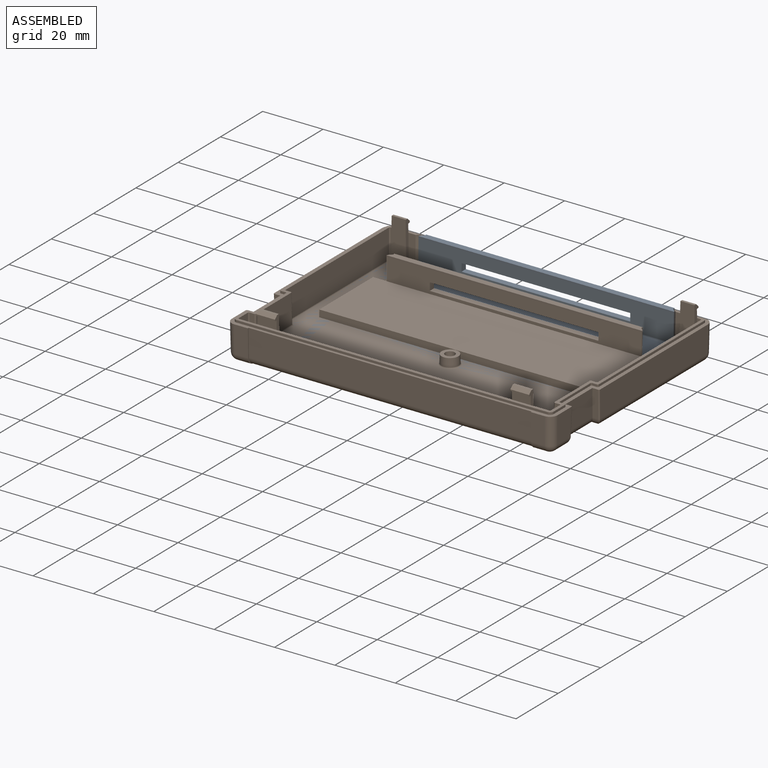
[diagram: assembled view]
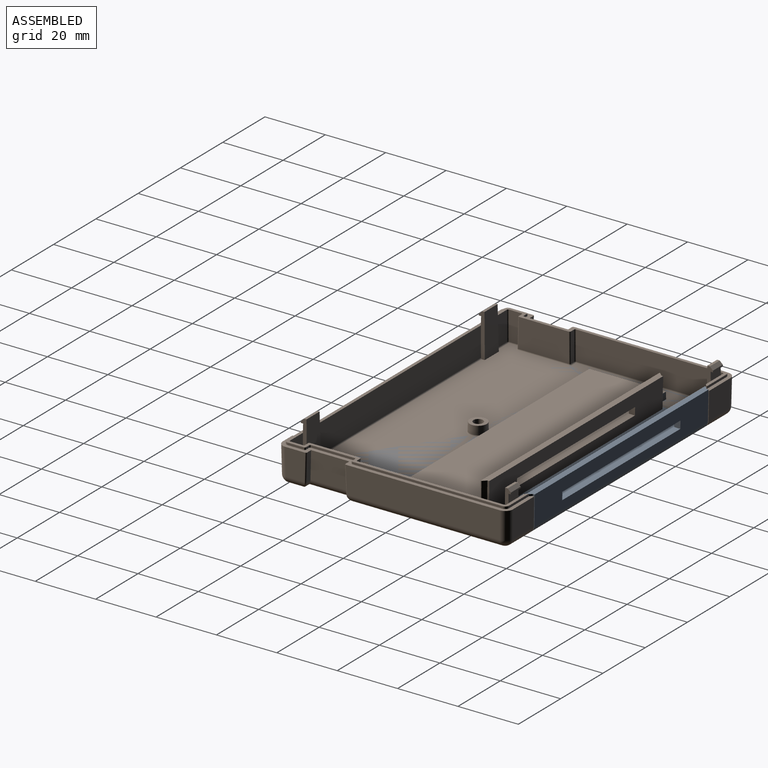
[diagram: assembled view, second angle]
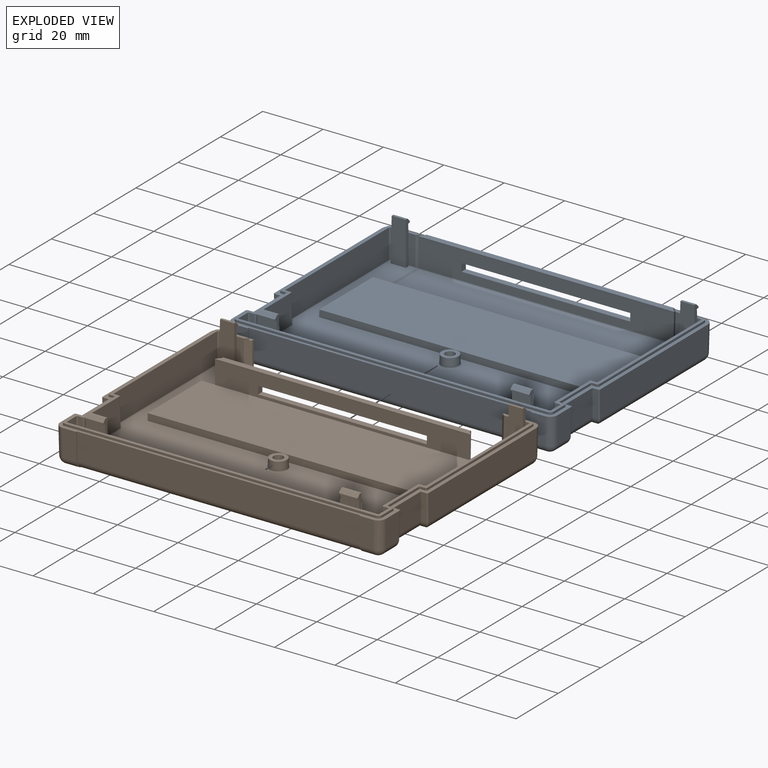
[diagram: exploded view]
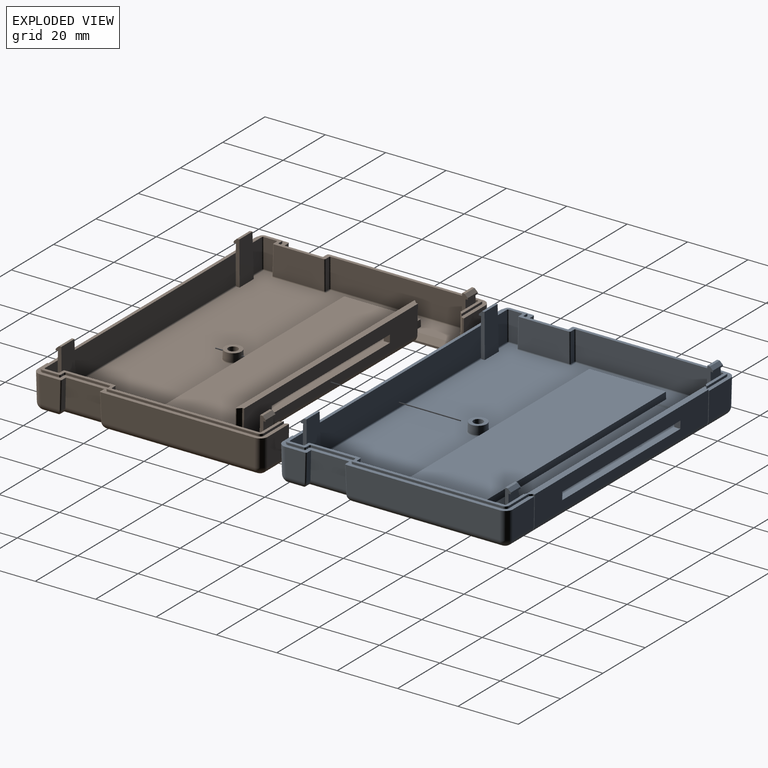
[diagram: exploded view, second angle]
FCSTD DOCUMENT  (FreeCAD 1.0R39109 (Git))
Label: ChameleonCase
License: CERN Open Hardware Licence weakly-reciprocal
LicenseURL: https://cern-ohl.web.cern.ch/
objects: Sketcher::SketchObject×19, PartDesign::Pad×14, PartDesign::Pocket×13, PartDesign::SubShapeBinder×12, PartDesign::Fillet×8, PartDesign::Plane×6, PartDesign::Draft×6, PartDesign::Body×6, App::Part×5, PartDesign::LinearPattern×4, Part::Offset2D×3, PartDesign::Hole×3, App::Link×3, App::DocumentObjectGroup×2, Spreadsheet::Sheet×1, PartDesign::SubtractivePipe×1, PartDesign::AdditivePipe×1, Part::MultiFuse×1
note: 212 computed .brp shape members not serialized (recipe doc carries the construction recipe); baked Part::Feature solids carry a one-line shape summary decoded from their .brp

FEATURE [Spreadsheet::Sheet] Spreadsheet  label="Parameters"
  cells = A1='Primary Dimensions; A2='Overall Width; B2(width)==4.25 "; A3='Overall Depth; B3(depth)==3 "; A4='Overall Height; B4(height)==0.9 "; A5='Draft Angle; B5(draftAngle)==1 deg; A6='Outer Fillet; B6(outerFillet)==100 thou; A7='Inner Fillet; B7(innerFillet)==15 thou; A8='Shell Thickness; B8(shellThickness)==90 thou; A9='Shell Mating Depth; B9(shellMatingDepth)==30 thou; A10='Shell Mating Clearance; B10(shellClearance)==5 thou; A12='Sticker Cutout; A13='Sticker Width; B13(stickerWidth)==3.69 "; A14='Sticker Height; B14(stickerHeight)==2 "; A15='Sticker Depth; B15(stickerDepth)==15 thou; A17='Screw Pattern; A18='Board Post Y Offset from Connector Edge; B18(boardPostYOffset)==2.08 "; A19='Board Post Height; B19(boardPostHeight)==0.525 "; A20='Board Post Outer Diameter; B20(boardPostOD)==0.22 "; A21='Board Post Inner Diameter; B21(boardPostID)==3 mm; C21='M2 heat-set insert; A22='Board Post X Spacing; B22(boardPostXSpacing)==1.785 "; A23='Board Post Y Spacing; B23(boardPostYSpacing)==1.4 "; A24='Shell Post Height; B24(shellPostHeight)==0.535 " + 1.6 mm; A25='Shell Post Outer Diameter; B25(shellPostOD)==0.22 "; A26='Shell Post Inner Diameter; B26(shellPostID)==3 mm; C26='M2 heat-set insert; A27='Shell Post Y Offset From Board Posts; B27(shellPostYOffset)==0.95 "; A29='Light Pipe; A30='Light Pipe Y Offset from Board Post; B30(lightPipeOffsetX)==10.9 mm; A31='Light Pipe X Offset from Board Post; B31(lightPipeOffsetY)==6.6 mm; A32='Light Pipe Height; B32(lightPipeHeight)==B19 - 2 mm; A34='Shutter; A35='Shutter Origin in Y; B35(shutterOriginY)==tan(draftAngle) * (height / 2 - outerFillet) + outerFillet; A36='Shutter Pocket Depth; B36(shutterPocketDepth)==1.6 "; A37='Shutter Movement Depth; B37(shutterMovementDepth)==0.6 in; A38='Shutter Width (Exterior); B38(shutterWidth)==3.25 "; A39='Shutter Square Bottom Height; B39(shutterSquareBottomHeight)==0.025 in; A40='Shutter Square Top Height; B40(shutterSquareTopHeight)==0.01 in; A41='Shutter Clearance; B41(shutterClearance)==0.01 in; A43='Clips; A44='Rear Clip Width; B44(clipRearWidth)==0.19 in; A45='Rear Clip Spacing; B45(clipRearSpacing)==3.575 in; A46='Front Clip Width; B46(clipFrontWidth)==0.25 in; A47='Front Clip Spacing; B47(clipFrontSpacing)==3.065 in; A48='Clip Height (shell top to tang bottom); B48(clipHeight)==0.14 in; A49='Clip Thickness; B49(clipThickness)==0.05 in; A50='Clip Tang Depth; B50(clipTangDepth)==0.03 in; A51='Clip Clearance; B51(clipClearance)==0.01 in; A52='Clip Nose Height; B52(clipNoseHeight)==0.02 in
FEATURE [Sketcher::SketchObject] Sketch  label="P0_CaseOutlineSketch"
  ArcFitTolerance = 0
  AttachmentSupport = -> [XY_Plane]
  FullyConstrained = true
  MakeInternals = false
  MapMode = 5
  expr: Constraints[25] = <<Parameters>>.depth
  expr: Constraints[30] = <<Parameters>>.width
  sketch-geometry (12):
    g0: LineSegment StartX=-53.975 StartY=0 StartZ=0 EndX=-53.975 EndY=9.525 EndZ=0
    g1: LineSegment StartX=-53.975 StartY=9.525 StartZ=0 EndX=-51.689 EndY=9.525 EndZ=0
    g2: LineSegment StartX=-51.689 StartY=9.525 StartZ=0 EndX=-51.689 EndY=22.225 EndZ=0
    g3: LineSegment StartX=-51.689 StartY=22.225 StartZ=0 EndX=-53.975 EndY=22.225 EndZ=0
    g4: LineSegment StartX=-53.975 StartY=22.225 StartZ=0 EndX=-53.975 EndY=76.2 EndZ=0
    g5: LineSegment StartX=53.975 StartY=0 StartZ=0 EndX=53.975 EndY=9.525 EndZ=0
    g6: LineSegment StartX=53.975 StartY=9.525 StartZ=0 EndX=51.689 EndY=9.525 EndZ=0
    g7: LineSegment StartX=51.689 StartY=9.525 StartZ=0 EndX=51.689 EndY=22.225 EndZ=0
    g8: LineSegment StartX=51.689 StartY=22.225 StartZ=0 EndX=53.975 EndY=22.225 EndZ=0
    g9: LineSegment StartX=53.975 StartY=22.225 StartZ=0 EndX=53.975 EndY=76.2 EndZ=0
    g10: LineSegment StartX=-53.975 StartY=0 StartZ=0 EndX=53.975 EndY=0 EndZ=0
    g11: LineSegment StartX=-53.975 StartY=76.2 StartZ=0 EndX=53.975 EndY=76.2 EndZ=0
  constraints (35):
    c: Vertical(g0)
    c: Coincident(g0,g1)
    c: Horizontal(g1)
    c: Coincident(g1,g2)
    c: Vertical(g2)
    c: Coincident(g2,g3)
    c: Horizontal(g3)
    c: Coincident(g3,g4)
    c: Vertical(g4)
    c: Vertical(g0,g3)
    c: Vertical(g5)
    c: Coincident(g5,g6)
    c: Horizontal(g6)
    c: Coincident(g6,g7)
    c: Vertical(g7)
    c: Coincident(g7,g8)
    c: Horizontal(g8)
    c: Coincident(g8,g9)
    c: Vertical(g9)
    c: Vertical(g5,g8)
    c: Equal(g1,g6)
    c: Equal(g7,g2)
    c: Equal(g0,g5)
    c: Horizontal(g10)
    c: Symmetric(g11,g11,g-2)
    c: DistanceY(g10,g11) = 76.2
    c: PointOnObject(g10,g-1)
    c: DistanceY(g5,g8) = 12.7
    c: DistanceX(g6,g6) = 2.286
    c: DistanceY(g10,g5) = 9.525
    c: DistanceX(g4,g9) = 107.95
    c: Coincident(g0,g10)
    c: Coincident(g10,g5)
    c: Coincident(g4,g11)
    c: Coincident(g9,g11)
FEATURE [PartDesign::SubShapeBinder] Binder  label="P01_CaseOutlineBinder"
  BindCopyOnChange = 0
  BindMode = 0
  ClaimChildren = false
  Context = -> Part [Body.Binder.]
  Fuse = false
  MakeFace = true
  OffsetFill = false
  OffsetIntersection = false
  OffsetJoinType = 0
  OffsetOpenResult = false
  PartialLoad = false
  Relative = true
  Support = -> [Sketch]
  _Version = 2
FEATURE [PartDesign::Pad] Pad  label="P01_CasePad"
  Direction = (0,0,1)
  Length = 11.43
  Length2 = 10
  Profile = -> Binder
  Suppressed = false
  Type = 0
  expr: Length = <<Parameters>>.height / 2
FEATURE [PartDesign::Plane] DatumPlane  label="P01_TopPlane"
  AttachmentOffset = pos=(0,0,11.43) rot=(0,0,1;0rad)
  AttachmentSupport = -> [XY_Plane001]
  Length = 128.856
  MapMode = 5
  Placement = pos=(0,0,11.43) rot=(0,0,1;0rad)
  ResizeMode = 0
  Width = 122.126
  expr: .AttachmentOffset.Base.z = <<Parameters>>.height / 2
FEATURE [Sketcher::SketchObject] Sketch001  label="P01_TopInsetSketch"
  ArcFitTolerance = 0
  AttachmentSupport = -> [DatumPlane]
  FullyConstrained = true
  MakeInternals = false
  MapMode = 5
  Placement = pos=(0,0,11.43) rot=(0,0,1;0rad)
  expr: Constraints[13] = <<Parameters>>.stickerWidth
  expr: Constraints[14] = <<Parameters>>.stickerHeight
  sketch-geometry (9):
    g0: LineSegment StartX=-46.863 StartY=0 StartZ=0 EndX=46.863 EndY=0 EndZ=0
    g1: LineSegment StartX=46.863 StartY=0 StartZ=0 EndX=46.863 EndY=46.99 EndZ=0
    g2: LineSegment StartX=43.053 StartY=50.8 StartZ=0 EndX=-43.053 EndY=50.8 EndZ=0
    g3: LineSegment StartX=-46.863 StartY=46.99 StartZ=0 EndX=-46.863 EndY=0 EndZ=0
    g4: ArcOfCircle CenterX=43.053 CenterY=46.99 CenterZ=0 NormalX=0 NormalY=0 NormalZ=1 AngleXU=0 Radius=3.81 StartAngle=8.98429e-11 EndAngle=1.5708
    g5: ArcOfCircle CenterX=-43.053 CenterY=46.99 CenterZ=0 NormalX=0 NormalY=0 NormalZ=1 AngleXU=0 Radius=3.81 StartAngle=1.5708 EndAngle=3.14159
    g6: LineSegment StartX=-12.7 StartY=55.626 StartZ=0 EndX=12.7 EndY=55.626 EndZ=0
    g7: LineSegment StartX=12.7 StartY=55.626 StartZ=0 EndX=0 EndY=68.326 EndZ=0
    g8: LineSegment StartX=0 StartY=68.326 StartZ=0 EndX=-12.7 EndY=55.626 EndZ=0
  constraints (23):
    c: Coincident(g0,g1)
    c: Vertical(g1)
    c: Horizontal(g2)
    c: Coincident(g3,g0)
    c: Vertical(g3)
    c: Symmetric(g0,g0,g-1)
    c: Horizontal(g0)
    c: Tangent(g1,g4) = -1.5708
    c: Tangent(g2,g4) = -1.5708
    c: Tangent(g2,g5) = -1.5708
    c: Tangent(g3,g5) = -1.5708
    c: Equal(g4,g5)
    c: Radius(g5) = 3.81
    c: DistanceX(g0,g0) = 93.726
    c: DistanceY(g0,g2) = 50.8
    c: Coincident(g6,g7)
    c: PointOnObject(g7,g-2)
    c: Coincident(g7,g8)
    c: Coincident(g8,g6)
    c: Symmetric(g6,g6,g-2)
    c: DistanceX(g6,g6) = 25.4
    c: DistanceY(g6,g7) = 12.7
    c: DistanceY(g2,g6) = 4.826
FEATURE [Sketcher::SketchObject] Sketch002  label="P01_FrontInsetSketch"
  ArcFitTolerance = 0
  AttachmentSupport = -> [XZ_Plane001]
  ExternalGeometry = -> [DatumPlane]
  FullyConstrained = true
  MakeInternals = false
  MapMode = 5
  Placement = pos=(0,0,0) rot=(1,0,0;1.5708rad)
  expr: Constraints[7] = <<Parameters>>.stickerWidth
  sketch-geometry (4):
    g0: LineSegment StartX=-46.863 StartY=-11.43 StartZ=0 EndX=46.863 EndY=-11.43 EndZ=0
    g1: LineSegment StartX=46.863 StartY=-11.43 StartZ=0 EndX=46.863 EndY=11.43 EndZ=0
    g2: LineSegment StartX=46.863 StartY=11.43 StartZ=0 EndX=-46.863 EndY=11.43 EndZ=0
    g3: LineSegment StartX=-46.863 StartY=11.43 StartZ=0 EndX=-46.863 EndY=-11.43 EndZ=0
  constraints (10):
    c: Coincident(g0,g1)
    c: Coincident(g1,g2)
    c: Coincident(g2,g3)
    c: Coincident(g3,g0)
    c: Horizontal(g2)
    c: Vertical(g3)
    c: PointOnObject(g1,g-3)
    c: DistanceX(g0,g0) = 93.726
    c: Symmetric(g0,g0,g-2)
    c: Symmetric(g0,g1,g-1)
FEATURE [PartDesign::Plane] DatumPlane001  label="P01_TopInsidePlane"
  AttachmentOffset = pos=(0,0,9.144) rot=(0,0,1;0rad)
  AttachmentSupport = -> [XY_Plane001]
  Length = 128.856
  MapMode = 5
  Placement = pos=(0,0,9.144) rot=(0,0,1;0rad)
  ResizeMode = 0
  Width = 122.126
  expr: .AttachmentOffset.Base.z = <<Parameters>>.height / 2 - <<Parameters>>.shellThickness
FEATURE [Sketcher::SketchObject] Sketch003  label="P01_BoardPostSketch"
  ArcFitTolerance = 0
  AttachmentOffset = pos=(0,0,-13.335) rot=(0,0,1;0rad)
  AttachmentSupport = -> [DatumPlane001]
  FullyConstrained = true
  MakeInternals = false
  MapMode = 5
  Placement = pos=(0,0,-4.191) rot=(0,0,1;0rad)
  expr: .AttachmentOffset.Base.z = <<Parameters>>.boardPostHeight * -1
  expr: Constraints[3] = Spreadsheet.boardPostOD
  expr: Constraints[7] = <<Parameters>>.boardPostXSpacing
  expr: Constraints[8] = <<Parameters>>.boardPostYSpacing
  expr: Constraints[9] = <<Parameters>>.boardPostYOffset
  sketch-geometry (4):
    g0: Circle CenterX=-22.6695 CenterY=52.832 CenterZ=0 NormalX=0 NormalY=0 NormalZ=1 AngleXU=0 Radius=2.794
    g1: Circle CenterX=22.6695 CenterY=52.832 CenterZ=0 NormalX=0 NormalY=0 NormalZ=1 AngleXU=0 Radius=2.794
    g2: Circle CenterX=22.6695 CenterY=17.272 CenterZ=0 NormalX=0 NormalY=0 NormalZ=1 AngleXU=0 Radius=2.794
    g3: Circle CenterX=-22.6695 CenterY=17.272 CenterZ=0 NormalX=0 NormalY=0 NormalZ=1 AngleXU=0 Radius=2.794
  constraints (11):
    c: Equal(g0,g1)
    c: Equal(g0,g3)
    c: Equal(g0,g2)
    c: Diameter(g0) = 5.588
    c: Horizontal(g0,g1)
    c: Vertical(g3,g0)
    c: Vertical(g1,g2)
    c: DistanceX(g0,g1) = 45.339
    c: DistanceY(g2,g1) = 35.56
    c: DistanceY(g-1,g0) = 52.832
    c: Symmetric(g3,g2,g-2)
FEATURE [Sketcher::SketchObject] Sketch004  label="P01_ShellPostSketch"
  ArcFitTolerance = 0
  AttachmentOffset = pos=(0,0,-15.189) rot=(0,0,1;0rad)
  AttachmentSupport = -> [DatumPlane001]
  FullyConstrained = true
  MakeInternals = false
  MapMode = 5
  Placement = pos=(0,0,-6.045) rot=(0,0,1;0rad)
  expr: .AttachmentOffset.Base.z = <<Parameters>>.shellPostHeight * -1
  expr: Constraints[1] = Spreadsheet.shellPostOD
  expr: Constraints[2] = <<Parameters>>.boardPostYOffset - <<Parameters>>.shellPostYOffset
  sketch-geometry (1):
    g0: Circle CenterX=0 CenterY=28.702 CenterZ=0 NormalX=0 NormalY=0 NormalZ=1 AngleXU=0 Radius=2.794
  constraints (3):
    c: PointOnObject(g0,g-2)
    c: Diameter(g0) = 5.588
    c: DistanceY(g-1,g0) = 28.702
FEATURE [Part::Offset2D] Offset2D001  label="P0_CaseInsideWire"
  Fill = false
  Intersection = false
  Join = 2
  Mode = 1
  SelfIntersection = false
  Source = -> Sketch
  Value = -2.286
  expr: Value = <<Parameters>>.shellThickness * -1
FEATURE [PartDesign::SubShapeBinder] Binder002  label="P01_CaseInsideWireBinder"
  BindCopyOnChange = 0
  BindMode = 0
  ClaimChildren = false
  Context = -> Part [Body.Binder002.]
  Fuse = false
  MakeFace = true
  OffsetFill = false
  OffsetIntersection = false
  OffsetJoinType = 0
  OffsetOpenResult = false
  PartialLoad = false
  Placement = pos=(0,0,0.762) rot=(0,0,1;0rad)
  Relative = true
  Support = -> [Group[Offset2D001.]]
  _Version = 2
  expr: .Placement.Base.z = <<Parameters>>.shellMatingDepth
FEATURE [Part::Offset2D] Offset2D  label="P0_TopCaseLipWire"
  Fill = false
  Intersection = false
  Join = 2
  Mode = 1
  SelfIntersection = false
  Source = -> Sketch
  Value = -1.143
  expr: Value = <<Parameters>>.shellThickness / -2
FEATURE [PartDesign::SubShapeBinder] Binder004  label="P01_LipWireBinder"
  BindCopyOnChange = 0
  BindMode = 0
  ClaimChildren = false
  Context = -> Part [Body.Binder004.]
  Fuse = false
  MakeFace = true
  OffsetFill = false
  OffsetIntersection = false
  OffsetJoinType = 0
  OffsetOpenResult = false
  PartialLoad = false
  Relative = true
  Support = -> [Group[Offset2D.]]
  _Version = 2
FEATURE [PartDesign::Pocket] Pocket005  label="P01_LipPocket"
  BaseFeature = -> Pad
  Direction = (0,0,-1)
  Length = 0.762
  Length2 = 5
  Profile = -> Binder004
  Reversed = true
  Suppressed = false
  Type = 0
  expr: Length = <<Parameters>>.shellMatingDepth
FEATURE [PartDesign::Pocket] Pocket002  label="P01_CaseInsidePocket"
  BaseFeature = -> Pocket005
  Direction = (0,0,-1)
  Length = 8.382
  Length2 = 5
  Profile = -> Binder002
  Reversed = true
  Suppressed = false
  TaperAngle = -1
  Type = 0
  expr: Length = <<Parameters>>.height / 2 - <<Parameters>>.shellThickness - <<Parameters>>.shellMatingDepth
  expr: TaperAngle = <<Parameters>>.draftAngle * -1
FEATURE [PartDesign::Pocket] Pocket  label="P01_TopInset"
  BaseFeature = -> Pocket002
  Direction = (0,0,-1)
  Length = 0.381
  Length2 = 5
  Profile = -> Sketch001
  ReferenceAxis = -> Sketch001 [N_Axis]
  Suppressed = false
  Type = 0
  expr: Length = <<Parameters>>.stickerDepth
FEATURE [PartDesign::Pocket] Pocket001  label="P01_FrontInset"
  BaseFeature = -> Pocket
  Direction = (0,1,-2e-16)
  Length = 0.381
  Length2 = 5
  Profile = -> Sketch002
  ReferenceAxis = -> Sketch002 [N_Axis]
  Refine = true
  Suppressed = false
  Type = 0
  expr: Length = <<Parameters>>.stickerDepth
FEATURE [PartDesign::SubShapeBinder] Binder005  label="P021_CaseOutlineBinder"
  BindCopyOnChange = 0
  BindMode = 0
  ClaimChildren = false
  Context = -> Part [Part001.Body001.Binder005.]
  Fuse = false
  MakeFace = true
  OffsetFill = false
  OffsetIntersection = false
  OffsetJoinType = 0
  OffsetOpenResult = false
  PartialLoad = false
  Relative = true
  Support = -> [Group[Sketch.]]
  _Version = 2
FEATURE [PartDesign::Pad] Pad004  label="P021_CasePad"
  Direction = (0,0,1)
  Length = 11.43
  Length2 = 10
  Profile = -> Binder005
  Reversed = true
  Suppressed = false
  Type = 0
  expr: Length = <<Parameters>>.height / 2
FEATURE [Part::Offset2D] Offset2D002  label="P0_BottomCaseLipWire"
  Fill = false
  Intersection = false
  Join = 2
  Mode = 1
  SelfIntersection = false
  Source = -> Sketch
  Value = -1.27
  expr: Value = (<<Parameters>>.shellThickness / 2 + <<Parameters>>.shellClearance) * -1
FEATURE [App::DocumentObjectGroup] Group  label="P0_MasterSketch"
  Group = -> [Sketch,Offset2D001,Offset2D,Offset2D002]
FEATURE [PartDesign::SubShapeBinder] Binder006  label="P021_LipWireBinder"
  BindCopyOnChange = 0
  BindMode = 0
  ClaimChildren = false
  Context = -> Part [Part001.Body001.Binder006.]
  Fuse = false
  MakeFace = true
  OffsetFill = false
  OffsetIntersection = false
  OffsetJoinType = 0
  OffsetOpenResult = false
  PartialLoad = false
  Relative = true
  Support = -> [Group[Offset2D002.]]
  _Version = 2
FEATURE [PartDesign::Pad] Pad005  label="P021_LipPad"
  BaseFeature = -> Pad004
  Direction = (0,0,1)
  Length = 0.762
  Length2 = 10
  Profile = -> Binder006
  Suppressed = false
  Type = 0
  expr: Length = <<Parameters>>.shellMatingDepth
FEATURE [PartDesign::SubShapeBinder] Binder007  label="P021_CaseInsideWireBinder"
  BindCopyOnChange = 0
  BindMode = 0
  ClaimChildren = false
  Context = -> Part [Part001.Body001.Binder007.]
  Fuse = false
  MakeFace = true
  OffsetFill = false
  OffsetIntersection = false
  OffsetJoinType = 0
  OffsetOpenResult = false
  PartialLoad = false
  Placement = pos=(0,0,0.762) rot=(0,0,1;0rad)
  Relative = true
  Support = -> [Group[Offset2D001.]]
  _Version = 2
  expr: .Placement.Base.z = <<Parameters>>.shellMatingDepth
FEATURE [PartDesign::Pocket] Pocket006  label="P021_CaseInsidePocket"
  BaseFeature = -> Pad005
  Direction = (0,0,-1)
  Length = 9.906
  Length2 = 5
  Profile = -> Binder007
  Suppressed = false
  TaperAngle = -1
  Type = 0
  expr: Length = <<Parameters>>.height / 2 - <<Parameters>>.shellThickness + <<Parameters>>.shellMatingDepth
  expr: TaperAngle = <<Parameters>>.draftAngle * -1
FEATURE [PartDesign::Plane] DatumPlane002  label="P021_BottomPlane"
  AttachmentOffset = pos=(0,0,-11.43) rot=(0,0,1;0rad)
  AttachmentSupport = -> [XY_Plane003]
  Length = 128.856
  MapMode = 5
  Placement = pos=(0,0,-11.43) rot=(0,0,1;0rad)
  ResizeMode = 0
  Width = 122.126
  expr: .AttachmentOffset.Base.z = <<Parameters>>.height / 2 * -1
FEATURE [PartDesign::Plane] DatumPlane004  label="P021_BackPlane"
  AttachmentOffset = pos=(0,0,-76.2) rot=(0,0,1;0rad)
  AttachmentSupport = -> [XZ_Plane003]
  Length = 122.649
  MapMode = 5
  Placement = pos=(0,76.2,-1.69e-14) rot=(1,0,0;1.5708rad)
  ResizeMode = 0
  Width = 64.7394
  expr: .AttachmentOffset.Base.z = <<Parameters>>.depth * -1
FEATURE [Sketcher::SketchObject] Sketch007  label="P021_ShutterBaseProfileSketch"
  ArcFitTolerance = 0
  AttachmentOffset = pos=(0,0,2.69518) rot=(0,0,1;0rad)
  AttachmentSupport = -> [DatumPlane004]
  ExternalGeometry = -> [DatumPlane002]
  FullyConstrained = true
  MakeInternals = false
  MapMode = 5
  Placement = pos=(0,73.5048,-1.63e-14) rot=(1,0,0;1.5708rad)
  expr: .AttachmentOffset.Base.z = <<Parameters>>.shutterOriginY
  expr: Constraints[14] = <<Parameters>>.shellThickness + <<Parameters>>.innerFillet
  expr: Constraints[15] = <<Parameters>>.shutterWidth
  expr: Constraints[16] = <<Parameters>>.shutterSquareBottomHeight
  expr: Constraints[17] = 90 ° + <<Parameters>>.draftAngle
  sketch-geometry (7):
    g0: LineSegment StartX=-43.3181 StartY=-8.763 StartZ=0 EndX=-41.2861 EndY=-10.795 EndZ=0
    g1: LineSegment [constr] StartX=-41.2861 StartY=-10.795 StartZ=0 EndX=41.2861 EndY=-10.795 EndZ=0
    g2: LineSegment StartX=41.2861 StartY=-10.795 StartZ=0 EndX=43.3181 EndY=-8.763 EndZ=0
    g3: LineSegment StartX=43.3181 StartY=-8.763 StartZ=0 EndX=-43.3181 EndY=-8.763 EndZ=0
    g4: LineSegment StartX=-41.2861 StartY=-10.795 StartZ=0 EndX=-41.275 EndY=-11.43 EndZ=0
    g5: LineSegment StartX=-41.275 StartY=-11.43 StartZ=0 EndX=41.275 EndY=-11.43 EndZ=0
    g6: LineSegment StartX=41.275 StartY=-11.43 StartZ=0 EndX=41.2861 EndY=-10.795 EndZ=0
  constraints (19):
    c: Coincident(g0,g1)
    c: Coincident(g1,g2)
    c: Coincident(g2,g3)
    c: Coincident(g3,g0)
    c: Horizontal(g3)
    c: Angle(g2,g1) = 2.35619
    c: Equal(g2,g0)
    c: Symmetric(g0,g1,g-2)
    c: Coincident(g0,g4)
    c: Coincident(g4,g5)
    c: Horizontal(g5)
    c: Coincident(g5,g6)
    c: Coincident(g6,g1)
    c: PointOnObject(g5,g-3)
    c: DistanceY(g4,g0) = 2.667
    c: DistanceX(g5,g5) = 82.55
    c: DistanceY(g4,g4) = 0.635
    c: Angle(g6,g5) = 1.58825
    c: Equal(g4,g6)
FEATURE [Sketcher::SketchObject] Sketch008  label="P021_FrontInsetSketch"
  ArcFitTolerance = 0
  AttachmentSupport = -> [XZ_Plane003]
  ExternalGeometry = -> [DatumPlane002]
  FullyConstrained = true
  MakeInternals = false
  MapMode = 5
  Placement = pos=(0,0,0) rot=(1,0,0;1.5708rad)
  expr: Constraints[9] = <<Parameters>>.stickerWidth
  sketch-geometry (4):
    g0: LineSegment StartX=-46.863 StartY=0 StartZ=0 EndX=46.863 EndY=0 EndZ=0
    g1: LineSegment StartX=46.863 StartY=0 StartZ=0 EndX=46.863 EndY=-11.43 EndZ=0
    g2: LineSegment StartX=46.863 StartY=-11.43 StartZ=0 EndX=-46.863 EndY=-11.43 EndZ=0
    g3: LineSegment StartX=-46.863 StartY=-11.43 StartZ=0 EndX=-46.863 EndY=0 EndZ=0
  constraints (11):
    c: Coincident(g0,g1)
    c: Coincident(g1,g2)
    c: Coincident(g2,g3)
    c: Coincident(g3,g0)
    c: Horizontal(g0)
    c: Horizontal(g2)
    c: Vertical(g1)
    c: Vertical(g3)
    c: Symmetric(g0,g0,g-1)
    c: DistanceX(g2,g2) = 93.726
    c: PointOnObject(g1,g-3)
FEATURE [PartDesign::Pocket] Pocket007  label="P021_FrontInset"
  BaseFeature = -> Pocket006
  Direction = (0,1,-2e-16)
  Length = 0.381
  Length2 = 5
  Profile = -> Sketch008
  ReferenceAxis = -> Sketch008 [N_Axis]
  Suppressed = false
  Type = 0
  expr: Length = <<Parameters>>.stickerDepth
FEATURE [Sketcher::SketchObject] Sketch009  label="P021_ShellPostSketch"
  ArcFitTolerance = 0
  AttachmentOffset = pos=(0,0,-6.045) rot=(0,0,1;0rad)
  AttachmentSupport = -> [XY_Plane003]
  FullyConstrained = true
  MakeInternals = false
  MapMode = 5
  Placement = pos=(0,0,-6.045) rot=(0,0,1;0rad)
  expr: .AttachmentOffset.Base.z = (<<Parameters>>.shellPostHeight + <<Parameters>>.shellThickness - <<Parameters>>.height / 2) * -1
  expr: Constraints[1] = <<Parameters>>.shellPostOD
  expr: Constraints[2] = <<Parameters>>.boardPostYOffset - <<Parameters>>.shellPostYOffset
  sketch-geometry (1):
    g0: Circle CenterX=0 CenterY=28.702 CenterZ=0 NormalX=0 NormalY=0 NormalZ=1 AngleXU=0 Radius=2.794
  constraints (3):
    c: PointOnObject(g0,g-2)
    c: Diameter(g0) = 5.588
    c: DistanceY(g-1,g0) = 28.702
FEATURE [Sketcher::SketchObject] Sketch010  label="P021_ShellPostHoleSketch"
  ArcFitTolerance = 0
  AttachmentSupport = -> [DatumPlane002]
  FullyConstrained = true
  MakeInternals = false
  MapMode = 5
  Placement = pos=(0,0,-11.43) rot=(0,0,1;0rad)
  expr: Constraints[1] = <<Parameters>>.boardPostYOffset - <<Parameters>>.shellPostYOffset
  expr: Constraints[2] = <<Parameters>>.shellPostOD
  sketch-geometry (1):
    g0: Circle CenterX=0 CenterY=28.702 CenterZ=0 NormalX=0 NormalY=0 NormalZ=1 AngleXU=0 Radius=2.794
  constraints (3):
    c: PointOnObject(g0,g-2)
    c: DistanceY(g-1,g0) = 28.702
    c: Diameter(g0) = 5.588
FEATURE [Sketcher::SketchObject] Sketch011  label="P01_RibSketch"
  ArcFitTolerance = 0
  AttachmentOffset = pos=(0,0,0.762) rot=(0,0,1;0rad)
  AttachmentSupport = -> [XY_Plane001]
  FullyConstrained = true
  MakeInternals = false
  MapMode = 5
  Placement = pos=(0,0,0.762) rot=(0,0,1;0rad)
  expr: .AttachmentOffset.Base.z = <<Parameters>>.shellMatingDepth
  expr: Constraints[13] = <<Parameters>>.shellThickness
  expr: Constraints[26] = <<Parameters>>.width - <<Parameters>>.shellThickness * 2
  sketch-geometry (18):
    g0: LineSegment StartX=-31.877 StartY=2.286 StartZ=0 EndX=-29.972 EndY=2.286 EndZ=0
    g1: LineSegment StartX=-29.972 StartY=2.286 StartZ=0 EndX=-29.972 EndY=6.35 EndZ=0
    g2: LineSegment StartX=-29.972 StartY=6.35 StartZ=0 EndX=-31.877 EndY=6.35 EndZ=0
    g3: LineSegment StartX=-31.877 StartY=6.35 StartZ=0 EndX=-31.877 EndY=2.286 EndZ=0
    g4: LineSegment [constr] StartX=-31.877 StartY=2.286 StartZ=0 EndX=31.877 EndY=2.286 EndZ=0
    g5: LineSegment StartX=31.877 StartY=2.286 StartZ=0 EndX=29.972 EndY=2.286 EndZ=0
    g6: LineSegment StartX=29.972 StartY=2.286 StartZ=0 EndX=29.972 EndY=6.35 EndZ=0
    g7: LineSegment StartX=29.972 StartY=6.35 StartZ=0 EndX=31.877 EndY=6.35 EndZ=0
    g8: LineSegment StartX=31.877 StartY=6.35 StartZ=0 EndX=31.877 EndY=2.286 EndZ=0
    g9: LineSegment [constr] StartX=-51.689 StartY=53.34 StartZ=0 EndX=51.689 EndY=53.34 EndZ=0
    g10: LineSegment StartX=-51.689 StartY=53.34 StartZ=0 EndX=-47.625 EndY=53.34 EndZ=0
    g11: LineSegment StartX=-47.625 StartY=53.34 StartZ=0 EndX=-47.625 EndY=51.435 EndZ=0
    g12: LineSegment StartX=-47.625 StartY=51.435 StartZ=0 EndX=-51.689 EndY=51.435 EndZ=0
    g13: LineSegment StartX=-51.689 StartY=51.435 StartZ=0 EndX=-51.689 EndY=53.34 EndZ=0
    g14: LineSegment StartX=51.689 StartY=53.34 StartZ=0 EndX=47.625 EndY=53.34 EndZ=0
    g15: LineSegment StartX=47.625 StartY=53.34 StartZ=0 EndX=47.625 EndY=51.435 EndZ=0
    g16: LineSegment StartX=47.625 StartY=51.435 StartZ=0 EndX=51.689 EndY=51.435 EndZ=0
    g17: LineSegment StartX=51.689 StartY=51.435 StartZ=0 EndX=51.689 EndY=53.34 EndZ=0
  constraints (50):
    c: Coincident(g0,g1)
    c: Coincident(g1,g2)
    c: Coincident(g2,g3)
    c: Coincident(g3,g0)
    c: Horizontal(g0)
    c: Horizontal(g2)
    c: Vertical(g1)
    c: Vertical(g3)
    c: DistanceY(g3,g3) = 4.064
    c: DistanceX(g0,g0) = 1.905
    c: Symmetric(g4,g4,g-2)
    c: DistanceX(g4,g4) = 63.754
    c: Coincident(g0,g4)
    c: DistanceY(g-1,g4) = 2.286
    c: Coincident(g5,g6)
    c: Coincident(g6,g7)
    c: Coincident(g7,g8)
    c: Coincident(g8,g5)
    c: Horizontal(g5)
    c: Horizontal(g7)
    c: Vertical(g6)
    c: Vertical(g8)
    c: Coincident(g5,g4)
    c: Equal(g6,g3)
    c: Equal(g7,g2)
    c: Symmetric(g9,g9,g-2)
    c: DistanceX(g9,g9) = 103.378
    c: DistanceY(g-1,g9) = 53.34
    c: Coincident(g10,g11)
    c: Coincident(g11,g12)
    c: Coincident(g12,g13)
    c: Coincident(g13,g10)
    c: Horizontal(g10)
    c: Horizontal(g12)
    c: Vertical(g11)
    c: Vertical(g13)
    c: Coincident(g10,g9)
    c: Coincident(g14,g15)
    c: Coincident(g15,g16)
    c: Coincident(g16,g17)
    c: Coincident(g17,g14)
    c: Horizontal(g14)
    c: Horizontal(g16)
    c: Vertical(g15)
    c: Vertical(g17)
    c: Coincident(g14,g9)
    c: Equal(g12,g3)
    c: Equal(g13,g2)
    c: Equal(g16,g3)
    c: Equal(g15,g2)
FEATURE [PartDesign::Draft] Draft  label="P01_ShellDraft"
  Angle = 1
  Base = -> Pocket001 [Face9,Face8,Face10,Face12,Face14,Face15,Face16,Face1,Face6,Face4]
  BaseFeature = -> Pocket001
  NeutralPlane = -> XY_Plane001
  SupportTransform = false
  Suppressed = false
  expr: Angle = <<Parameters>>.draftAngle
FEATURE [PartDesign::Draft] Draft004  label="P01_GripDraft"
  Angle = 2
  Base = -> Draft [Face11,Face13,Face5,Face7]
  BaseFeature = -> Draft
  NeutralPlane = -> XY_Plane001
  SupportTransform = false
  Suppressed = false
FEATURE [PartDesign::Fillet] Fillet  label="P01_ShellOuterFillet"
  Base = -> Draft004 [Edge56,Edge37,Edge36,Edge34,Edge35,Edge33,Edge32,Edge3,Edge57,Edge38,Edge39,Edge40,Edge41,Edge42,Edge62,Edge43,Edge65,Edge4]
  BaseFeature = -> Draft004
  Radius = 2.54
  SupportTransform = false
  Suppressed = false
  UseAllEdges = false
  expr: Radius = <<Parameters>>.outerFillet
FEATURE [PartDesign::Fillet] Fillet006  label="P01_ShellInnerFillet"
  Base = -> Fillet [Face74,Edge180,Edge182,Edge184,Edge178,Edge186,Edge188,Edge190,Edge176,Edge194,Edge192,Edge198,Edge196,Edge56,Edge46,Edge78,Edge80,Edge100,Edge96,Edge104,Edge108,Edge106,Edge102,Edge94,Edge98]
  BaseFeature = -> Fillet
  Radius = 0.381
  SupportTransform = false
  Suppressed = false
  UseAllEdges = false
  expr: Radius = <<Parameters>>.innerFillet
FEATURE [PartDesign::Fillet] Fillet007  label="P01_ShellLipFillet"
  Base = -> Fillet006 [Edge114,Edge110,Edge140,Edge144]
  BaseFeature = -> Fillet006
  Radius = 1.397
  SupportTransform = false
  Suppressed = false
  UseAllEdges = false
  expr: Radius = <<Parameters>>.outerFillet - <<Parameters>>.shellThickness / 2
FEATURE [PartDesign::Pad] Pad002  label="P01_BoardPostPad"
  BaseFeature = -> Fillet007
  Direction = (0,0,1)
  Length = 13.335
  Length2 = 10
  Profile = -> Sketch003
  ReferenceAxis = -> Sketch003 [N_Axis]
  Suppressed = false
  TaperAngle = 1
  Type = 0
  expr: Length = <<Parameters>>.boardPostHeight
  expr: TaperAngle = <<Parameters>>.draftAngle
FEATURE [PartDesign::Hole] Hole  label="P01_BoardPostHole"
  BaseFeature = -> Pad002
  CustomThreadClearance = 0
  Depth = 13.335
  DepthType = 0
  Diameter = 3
  DrillForDepth = false
  DrillPoint = 0
  DrillPointAngle = 118
  HoleCutCountersinkAngle = 90
  HoleCutCustomValues = false
  HoleCutDepth = 0
  HoleCutDiameter = 0
  HoleCutType = 0
  ModelThread = false
  Profile = -> Sketch003
  Reversed = true
  Suppressed = false
  Tapered = true
  TaperedAngle = 89
  ThreadClass = 0
  ThreadDepth = 13.335
  ThreadDepthType = 0
  ThreadDirection = 0
  ThreadFit = 0
  ThreadSize = 0
  ThreadType = 0
  Threaded = false
  UseCustomThreadClearance = false
  expr: Depth = <<Parameters>>.boardPostHeight
  expr: Diameter = <<Parameters>>.boardPostID
  expr: TaperedAngle = 90 ° - <<Parameters>>.draftAngle
FEATURE [PartDesign::Pad] Pad003  label="P01_ShellPostPad"
  BaseFeature = -> Hole
  Direction = (0,0,1)
  Length = 15.189
  Length2 = 10
  Profile = -> Sketch004
  ReferenceAxis = -> Sketch004 [N_Axis]
  Suppressed = false
  TaperAngle = 1
  Type = 0
  expr: Length = <<Parameters>>.shellPostHeight
  expr: TaperAngle = <<Parameters>>.draftAngle
FEATURE [PartDesign::Hole] Hole001  label="P01_ShellPostHole"
  BaseFeature = -> Pad003
  CustomThreadClearance = 0
  Depth = 15.189
  DepthType = 0
  Diameter = 3
  DrillForDepth = false
  DrillPoint = 0
  DrillPointAngle = 118
  HoleCutCountersinkAngle = 90
  HoleCutCustomValues = false
  HoleCutDepth = 0
  HoleCutDiameter = 0
  HoleCutType = 0
  ModelThread = false
  Profile = -> Sketch004
  Reversed = true
  Suppressed = false
  Tapered = true
  TaperedAngle = 89
  ThreadClass = 0
  ThreadDepth = 15.189
  ThreadDepthType = 0
  ThreadDirection = 0
  ThreadFit = 0
  ThreadSize = 0
  ThreadType = 0
  Threaded = false
  UseCustomThreadClearance = false
  expr: Depth = <<Parameters>>.shellPostHeight
  expr: Diameter = <<Parameters>>.shellPostID
  expr: TaperedAngle = 90 ° - <<Parameters>>.draftAngle
FEATURE [PartDesign::Draft] Draft005  label="P021_ShellDraft"
  Angle = 1
  Base = -> Pocket007 [Face18,Face16,Face1,Face15,Face13,Face11,Face10,Face9,Face7,Face5]
  BaseFeature = -> Pocket007
  NeutralPlane = -> XY_Plane003
  Reversed = true
  SupportTransform = false
  Suppressed = false
  expr: Angle = <<Parameters>>.draftAngle
FEATURE [PartDesign::Draft] Draft006  label="P021_GripDraft"
  Angle = 2
  Base = -> Draft005 [Face8,Face6,Face12,Face14]
  BaseFeature = -> Draft005
  NeutralPlane = -> XY_Plane003
  Reversed = true
  SupportTransform = false
  Suppressed = false
FEATURE [PartDesign::Fillet] Fillet009  label="P021_ShellInsetFillet"
  Base = -> Draft006 [Edge47]
  BaseFeature = -> Draft006
  Radius = 2.54
  SupportTransform = false
  Suppressed = false
  UseAllEdges = false
  expr: Radius = <<Parameters>>.outerFillet
FEATURE [PartDesign::Fillet] Fillet010  label="P021_ShellOuterFillet"
  Base = -> Fillet009 [Edge40,Edge41,Edge65,Edge42,Edge44,Edge46,Edge48,Edge43,Edge53,Edge45,Edge47,Edge49,Edge51,Edge52,Edge59,Edge50,Edge60]
  BaseFeature = -> Fillet009
  Radius = 2.54
  SupportTransform = false
  Suppressed = false
  UseAllEdges = false
  expr: Radius = <<Parameters>>.outerFillet
FEATURE [PartDesign::Fillet] Fillet011  label="P021_ShellInnerFillet"
  Base = -> Fillet010 [Face66,Edge157,Edge159,Edge161,Edge165,Edge163,Edge167,Edge155,Edge177,Edge175,Edge169,Edge171,Edge173,Edge121,Edge125,Edge112,Edge129,Edge133,Edge113,Edge102,Edge99,Edge131,Edge127,Edge123,Edge119]
  BaseFeature = -> Fillet010
  Radius = 0.381
  SupportTransform = false
  Suppressed = false
  UseAllEdges = false
  expr: Radius = <<Parameters>>.innerFillet
FEATURE [PartDesign::Fillet] Fillet012  label="P021_ShellLipFillet"
  Base = -> Fillet011 [Edge140,Edge136,Edge106,Edge110]
  BaseFeature = -> Fillet011
  Radius = 1.27
  SupportTransform = false
  Suppressed = false
  UseAllEdges = false
  expr: Radius = <<Parameters>>.outerFillet - <<Parameters>>.shellThickness / 2 - <<Parameters>>.shellClearance
FEATURE [PartDesign::Pad] Pad006  label="P021_ShellPostPad"
  BaseFeature = -> Fillet012
  Direction = (0,0,1)
  Length = 3.099
  Length2 = 10
  Profile = -> Sketch009
  ReferenceAxis = -> Sketch009 [N_Axis]
  Reversed = true
  Suppressed = false
  TaperAngle = 2
  Type = 0
  expr: Length = <<Parameters>>.height - <<Parameters>>.shellThickness * 2 - <<Parameters>>.shellPostHeight
FEATURE [PartDesign::Hole] Hole002  label="P021_ShellPostHole"
  BaseFeature = -> Pad006
  CustomThreadClearance = 0
  Depth = 5.385
  DepthType = 0
  Diameter = 3
  DrillForDepth = false
  DrillPoint = 0
  DrillPointAngle = 118
  HoleCutCountersinkAngle = 90
  HoleCutCustomValues = false
  HoleCutDepth = 0
  HoleCutDiameter = 6.604
  HoleCutType = 2
  ModelThread = false
  Profile = -> Sketch010
  Reversed = true
  Suppressed = false
  Tapered = true
  TaperedAngle = 91
  ThreadClass = 0
  ThreadDepth = 5.385
  ThreadDepthType = 0
  ThreadDirection = 0
  ThreadFit = 0
  ThreadSize = 0
  ThreadType = 0
  Threaded = false
  UseCustomThreadClearance = false
  expr: Depth = <<Parameters>>.height - <<Parameters>>.shellThickness - <<Parameters>>.shellPostHeight
  expr: Diameter = <<Parameters>>.shellPostID
  expr: TaperedAngle = 90 ° + <<Parameters>>.draftAngle
FEATURE [PartDesign::Fillet] Fillet013  label="P021_PostFillet"
  Base = -> Hole002 [Edge332]
  BaseFeature = -> Hole002
  Radius = 0.381
  SupportTransform = false
  Suppressed = false
  UseAllEdges = false
  expr: Radius = <<Parameters>>.innerFillet
FEATURE [Sketcher::SketchObject] Sketch013  label="P01_LightPipeSketch"
  ArcFitTolerance = 1e-06
  AttachmentSupport = -> [DatumPlane001]
  FullyConstrained = true
  MakeInternals = false
  MapMode = 5
  Placement = pos=(0,0,9.144) rot=(0,0,1;0rad)
  expr: Constraints[0] = <<Parameters>>.boardPostXSpacing / 2 - <<Parameters>>.lightPipeOffsetX
  expr: Constraints[1] = <<Parameters>>.boardPostYOffset - <<Parameters>>.boardPostYSpacing - <<Parameters>>.lightPipeOffsetY
  sketch-geometry (1):
    g0: Circle CenterX=-11.7695 CenterY=10.672 CenterZ=0 NormalX=0 NormalY=0 NormalZ=1 AngleXU=0 Radius=1.5
  constraints (3):
    c: DistanceX(g0,g-1) = 11.7695
    c: DistanceY(g-1,g0) = 10.672
    c: Diameter(g0) = 3
FEATURE [PartDesign::SubShapeBinder] Binder010  label="P012_TopInsetSketchBinder"
  BindCopyOnChange = 0
  BindMode = 0
  ClaimChildren = false
  Context = -> Part [Part002.Body004.Binder010.]
  Fuse = false
  MakeFace = true
  Offset = -0.08
  OffsetFill = false
  OffsetIntersection = false
  OffsetJoinType = 0
  OffsetOpenResult = false
  PartialLoad = false
  Relative = true
  Support = -> [Body[Sketch001.]]
  _Version = 2
  expr: Offset = -0.08 mm
FEATURE [PartDesign::Pad] Pad008  label="P012_StickerPad"
  Direction = (0,0,1)
  Length = 0.381
  Length2 = 10
  Profile = -> Binder010 [Face1]
  Reversed = true
  Suppressed = false
  Type = 0
  expr: Length = <<Parameters>>.stickerDepth
FEATURE [PartDesign::Body] Body004  label="P012_StickerSupport"
  AllowCompound = false
  Group = -> [Binder010,Pad008]
  Origin = -> Origin008
  Tip = -> Pad008
FEATURE [PartDesign::SubShapeBinder] Binder011  label="P013_TopInsetSketchBinder"
  BindCopyOnChange = 0
  BindMode = 0
  ClaimChildren = false
  Context = -> Part [Part002.Body005.Binder011.]
  Fuse = false
  MakeFace = true
  OffsetFill = false
  OffsetIntersection = false
  OffsetJoinType = 0
  OffsetOpenResult = false
  PartialLoad = false
  Relative = true
  Support = -> [Body[Sketch001.]]
  _Version = 2
FEATURE [Sketcher::SketchObject] Sketch014  label="P01_ClipFrontSketch"
  ArcFitTolerance = 1e-06
  AttachmentOffset = pos=(0,0,38.6715) rot=(0,0,1;0rad)
  AttachmentSupport = -> [YZ_Plane001]
  FullyConstrained = true
  MakeInternals = false
  MapMode = 5
  Placement = pos=(38.6715,0,0) rot=(0.57735,0.57735,0.57735;2.0944rad)
  expr: .AttachmentOffset.Base.z = <<Parameters>>.clipFrontSpacing / 2 - <<Parameters>>.clipClearance
  expr: Constraints[11] = <<Parameters>>.clipNoseHeight + <<Parameters>>.clipClearance * 2
  expr: Constraints[12] = <<Parameters>>.clipHeight - <<Parameters>>.clipClearance
  expr: Constraints[1] = <<Parameters>>.shellThickness
  expr: Constraints[20] = <<Parameters>>.shellMatingDepth
  expr: Constraints[22] = <<Parameters>>.clipTangDepth + <<Parameters>>.clipClearance
  expr: Constraints[2] = 90 ° - <<Parameters>>.draftAngle
  sketch-geometry (8):
    g0: LineSegment [constr] StartX=2.286 StartY=0 StartZ=0 EndX=2.37909 EndY=5.33319 EndZ=0
    g1: LineSegment StartX=2.34363 StartY=3.3015 StartZ=0 EndX=1.32778 EndY=3.31923 EndZ=0
    g2: LineSegment StartX=1.32778 StartY=3.31923 StartZ=0 EndX=1.34551 EndY=4.33507 EndZ=0
    g3: LineSegment StartX=1.34551 StartY=4.33507 StartZ=0 EndX=2.37909 EndY=5.33319 EndZ=0
    g4: LineSegment StartX=2.37909 StartY=5.33319 StartZ=0 EndX=2.34363 EndY=3.3015 EndZ=0
    g5: LineSegment StartX=1.32778 StartY=0.762 StartZ=0 EndX=2.31596 EndY=1.71627 EndZ=0
    g6: LineSegment StartX=2.31596 StartY=1.71627 StartZ=0 EndX=2.2993 EndY=0.762 EndZ=0
    g7: LineSegment StartX=2.2993 StartY=0.762 StartZ=0 EndX=1.32778 EndY=0.762 EndZ=0
  constraints (24):
    c: PointOnObject(g0,g-1)
    c: DistanceX(g-1,g0) = 2.286
    c: Angle(g-1,g0) = 1.55334
    c: PointOnObject(g1,g0)
    c: Coincident(g1,g2)
    c: Coincident(g2,g3)
    c: Coincident(g3,g0)
    c: Coincident(g3,g4)
    c: Coincident(g4,g1)
    c: Perpendicular(g1,g2)
    c: Angle(g3,g4) = 0.785398
    c: Distance(g2) = 1.016
    c: Distance(g1,g0) = 3.302
    c: PointOnObject(g5,g0)
    c: Coincident(g6,g5)
    c: Coincident(g7,g6)
    c: Coincident(g7,g5)
    c: Angle(g5,g6) = 0.785398
    c: PointOnObject(g6,g0)
    c: Horizontal(g7)
    c: DistanceY(g0,g6) = 0.762
    c: Vertical(g1,g5)
    c: Distance(g1) = 1.016
    c: Perpendicular(g1,g0)
FEATURE [PartDesign::SubShapeBinder] Binder012  label="P01_ClipRearSketchBinder"
  BindCopyOnChange = 0
  BindMode = 0
  ClaimChildren = false
  Context = -> Part [Part002.Body.Binder012.]
  Fuse = false
  MakeFace = true
  OffsetFill = false
  OffsetIntersection = false
  OffsetJoinType = 0
  OffsetOpenResult = false
  PartialLoad = false
  Placement = pos=(-6.477,76.2,0) rot=(0,0,1;3.14159rad)
  Relative = true
  Support = -> [Sketch014]
  _Version = 2
  expr: .Placement.Base.x = (<<Parameters>>.clipFrontSpacing - <<Parameters>>.clipRearSpacing) / 2
  expr: .Placement.Base.y = <<Parameters>>.depth
FEATURE [PartDesign::Pad] Pad009  label="P013_ArrowPad"
  Direction = (0,0,1)
  Length = 0.381
  Length2 = 10
  Profile = -> Binder011 [Face2]
  Refine = true
  Reversed = true
  Suppressed = false
  Type = 0
  expr: Length = <<Parameters>>.stickerDepth
FEATURE [PartDesign::Body] Body005  label="P013_Arrow"
  AllowCompound = false
  Group = -> [Binder011,Pad009]
  Origin = -> Origin009
  Tip = -> Pad009
FEATURE [PartDesign::Pocket] Pocket012  label="P021_ShutterBasePocket"
  BaseFeature = -> Fillet013
  Direction = (0,1,-2e-16)
  Length = 37.9448
  Length2 = 5
  Profile = -> Sketch007
  ReferenceAxis = -> Sketch007 [N_Axis]
  Refine = true
  Reversed = true
  Suppressed = false
  Type = 0
  expr: Length = <<Parameters>>.shutterPocketDepth - <<Parameters>>.shutterOriginY
FEATURE [Sketcher::SketchObject] Sketch015  label="P021_ShutterTopProfileSketch"
  ArcFitTolerance = 1e-06
  AttachmentSupport = -> [XY_Plane003]
  ExternalGeometry = -> [DatumPlane004]
  FullyConstrained = true
  MakeInternals = false
  MapMode = 5
  expr: Constraints[12] = 90 ° + <<Parameters>>.draftAngle
  expr: Constraints[15] = <<Parameters>>.shutterSquareBottomHeight
  expr: Constraints[16] = <<Parameters>>.shellThickness + <<Parameters>>.innerFillet
  expr: Constraints[17] = <<Parameters>>.shutterWidth + tan(<<Parameters>>.draftAngle) * <<Parameters>>.height / 2
  sketch-geometry (7):
    g0: LineSegment StartX=-41.3748 StartY=76.2 StartZ=0 EndX=41.3748 EndY=76.2 EndZ=0
    g1: LineSegment StartX=41.3748 StartY=76.2 StartZ=0 EndX=41.3858 EndY=75.565 EndZ=0
    g2: LineSegment StartX=41.3858 StartY=75.565 StartZ=0 EndX=43.4178 EndY=73.533 EndZ=0
    g3: LineSegment StartX=43.4178 StartY=73.533 StartZ=0 EndX=-43.4178 EndY=73.533 EndZ=0
    g4: LineSegment StartX=-43.4178 StartY=73.533 StartZ=0 EndX=-41.3858 EndY=75.565 EndZ=0
    g5: LineSegment StartX=-41.3858 StartY=75.565 StartZ=0 EndX=-41.3748 EndY=76.2 EndZ=0
    g6: LineSegment [constr] StartX=-41.3858 StartY=75.565 StartZ=0 EndX=41.3858 EndY=75.565 EndZ=0
  constraints (19):
    c: Coincident(g0,g1)
    c: Coincident(g1,g2)
    c: Coincident(g2,g3)
    c: Horizontal(g3)
    c: Coincident(g3,g4)
    c: Coincident(g4,g5)
    c: Coincident(g5,g0)
    c: Coincident(g4,g6)
    c: Coincident(g6,g1)
    c: Horizontal(g6)
    c: Equal(g5,g1)
    c: Equal(g4,g2)
    c: Angle(g0,g1) = 1.58825
    c: Angle(g2,g3) = 0.785398
    c: Symmetric(g0,g0,g-2)
    c: DistanceY(g4,g0) = 0.635
    c: DistanceY(g3,g0) = 2.667
    c: DistanceX(g0,g0) = 82.7495
    c: PointOnObject(g0,g-3)
FEATURE [Sketcher::SketchObject] Sketch016  label="P021_ShutterPathSketch"
  ArcFitTolerance = 1e-06
  AttachmentSupport = -> [YZ_Plane003]
  ExternalGeometry = -> [Sketch007,Sketch015]
  FullyConstrained = true
  MakeInternals = false
  MapMode = 5
  Placement = pos=(0,0,0) rot=(0.57735,0.57735,0.57735;2.0944rad)
  expr: Constraints[0] = <<Parameters>>.outerFillet
  expr: Constraints[4] = 90 ° - <<Parameters>>.draftAngle
  sketch-geometry (2):
    g0: ArcOfCircle CenterX=73.5044 CenterY=-8.89 CenterZ=0 NormalX=0 NormalY=0 NormalZ=1 AngleXU=0 Radius=2.54 StartAngle=4.71254 EndAngle=6.26573
    g1: LineSegment StartX=76.0441 StartY=-8.93433 StartZ=0 EndX=76.2 EndY=0 EndZ=0
  constraints (5):
    c: Radius(g0) = 2.54
    c: Coincident(g-3,g0)
    c: Coincident(g1,g-4)
    c: Tangent(g1,g0) = -1.5708
    c: Angle(g-1,g1) = 1.55334
FEATURE [PartDesign::SubtractivePipe] SubtractivePipe  label="P021_ShutterBackPocket"
  AuxilleryCurvelinear = true
  AuxillerySpineTangent = false
  BaseFeature = -> Pocket012
  Binormal = (0,0,0)
  Mode = 0
  Profile = -> Sketch007
  Refine = true
  Sections = -> [Sketch015]
  Spine = -> Sketch016
  SpineTangent = false
  Suppressed = false
  Transformation = 1
  Transition = 0
FEATURE [PartDesign::Pocket] Pocket013  label="P021_ShutterTopPocket"
  BaseFeature = -> SubtractivePipe
  Direction = (0,0,-1)
  Length = 0.762
  Length2 = 5
  Profile = -> Sketch015
  ReferenceAxis = -> Sketch015 [N_Axis]
  Refine = true
  Reversed = true
  Suppressed = false
  Type = 0
  expr: Length = <<Parameters>>.shellMatingDepth
FEATURE [PartDesign::SubShapeBinder] Binder013  label="P01_ShutterTopProfileSketchBinder"
  BindCopyOnChange = 0
  BindMode = 0
  ClaimChildren = false
  Context = -> Part [Part002.Body.Binder013.]
  Fuse = false
  MakeFace = true
  OffsetFill = false
  OffsetIntersection = false
  OffsetJoinType = 0
  OffsetOpenResult = false
  PartialLoad = false
  Refine = true
  Relative = true
  Support = -> [Part001[Body001.Sketch015.]]
  _Version = 2
FEATURE [PartDesign::Pocket] Pocket014  label="P01_ShutterRelief"
  BaseFeature = -> Hole001
  Direction = (0,0,-1)
  Length = 0.762
  Length2 = 5
  Profile = -> Binder013
  Refine = true
  Reversed = true
  Suppressed = false
  Type = 0
  expr: Length = <<Parameters>>.shellMatingDepth
FEATURE [PartDesign::Pad] Pad007  label="P01_RibPad"
  BaseFeature = -> Pocket014
  Direction = (0,0,1)
  Length = 9.144
  Length2 = 3.81
  Profile = -> Sketch011
  ReferenceAxis = -> Sketch011 [N_Axis]
  Suppressed = false
  TaperAngle = 1
  TaperAngle2 = -1
  Type = 4
  expr: Length = <<Parameters>>.height / 2 - <<Parameters>>.shellThickness
  expr: TaperAngle = <<Parameters>>.draftAngle
  expr: TaperAngle2 = <<Parameters>>.draftAngle * -1
FEATURE [PartDesign::Pocket] Pocket009  label="P01_LightPipeHole"
  BaseFeature = -> Pad007
  Direction = (0,0,-1)
  Length = 2.286
  Length2 = 5
  Profile = -> Sketch013
  ReferenceAxis = -> Sketch013 [N_Axis]
  Reversed = true
  Suppressed = false
  Type = 0
  expr: Length = <<Parameters>>.shellThickness
FEATURE [PartDesign::Pocket] Pocket010  label="P01_ClipFrontPocket"
  BaseFeature = -> Pocket009
  Direction = (-1,0,0)
  Length = 6.858
  Length2 = 5
  Profile = -> Sketch014
  ReferenceAxis = -> Sketch014 [N_Axis]
  Reversed = true
  Suppressed = false
  Type = 0
  expr: Length = <<Parameters>>.clipFrontWidth + <<Parameters>>.clipClearance * 2
FEATURE [PartDesign::LinearPattern] LinearPattern  label="P01_ClipFrontPattern"
  BaseFeature = -> Pocket010
  Direction = -> Sketch014 [N_Axis]
  Length = 84.201
  Mode = 0
  Occurrences = 2
  Offset = 84.201
  Originals = -> [Pocket010]
  Reversed = true
  Suppressed = false
  TransformMode = 0
  expr: Length = <<Parameters>>.clipFrontSpacing + <<Parameters>>.clipFrontWidth
FEATURE [PartDesign::Pocket] Pocket011  label="P01_ClipRearPocket"
  BaseFeature = -> LinearPattern
  Direction = (1,-1e-16,0)
  Length = 5.334
  Length2 = 5
  Profile = -> Binder012
  Reversed = true
  Suppressed = false
  Type = 0
  expr: Length = <<Parameters>>.clipRearWidth + <<Parameters>>.clipClearance * 2
FEATURE [PartDesign::LinearPattern] LinearPattern001  label="P01_ClipRearPattern"
  BaseFeature = -> Pocket011
  Direction = -> X_Axis001
  Length = 95.631
  Mode = 0
  Occurrences = 2
  Offset = 95.631
  Originals = -> [Pocket011]
  Suppressed = false
  TransformMode = 0
  expr: Length = <<Parameters>>.clipRearSpacing + <<Parameters>>.clipRearWidth
FEATURE [PartDesign::Body] Body  label="P01_TopShell"
  AllowCompound = false
  Group = -> [DatumPlane,DatumPlane001,Binder,Pad,Binder004,Pocket005,Binder002,Pocket002,Sketch001,Pocket,Sketch002,Pocket001,Sketch003,Draft,Draft004,Fillet,Fillet006,Fillet007,Pad002,Sketch004,Hole,Pad003,Hole001,Sketch011,Binder013,Pocket014,Pad007,Sketch013,Pocket009,Sketch014,Pocket010,LinearPattern,Binder012,Pocket011,LinearPattern001]
  Origin = -> Origin001
  Tip = -> LinearPattern001
FEATURE [App::Part] Part002  label="P01_TopAssembly"
  Group = -> [Body,Body004,Body005]
  Origin = -> Origin005
FEATURE [PartDesign::Draft] Draft007  label="P021_ShutterPocketDraft"
  Angle = 1
  Base = -> Pocket013 [Face12]
  BaseFeature = -> Pocket013
  NeutralPlane = -> XY_Plane003
  Refine = true
  SupportTransform = false
  Suppressed = false
  expr: Angle = <<Parameters>>.draftAngle
FEATURE [PartDesign::Plane] DatumPlane005  label="P022_BottomPlane"
  AttachmentOffset = pos=(0,0,-11.43) rot=(0,0,1;0rad)
  AttachmentSupport = -> [XY_Plane010]
  Length = 103.052
  MapMode = 5
  Placement = pos=(0,0,-11.43) rot=(0,0,1;0rad)
  ResizeMode = 0
  Width = 119.722
  expr: .AttachmentOffset.Base.z = <<Parameters>>.height / 2 * -1
FEATURE [PartDesign::Plane] DatumPlane006  label="P022_BackPlane"
  AttachmentOffset = pos=(0,0,-76.2) rot=(0,0,1;0rad)
  AttachmentSupport = -> [XZ_Plane010]
  Length = 97.5587
  MapMode = 5
  Placement = pos=(0,76.2,-1.69e-14) rot=(1,0,0;1.5708rad)
  ResizeMode = 0
  Width = 63.049
  expr: .AttachmentOffset.Base.z = <<Parameters>>.depth * -1
FEATURE [Sketcher::SketchObject] Sketch017  label="P022_ShutterBaseProfileSketch"
  ArcFitTolerance = 0
  AttachmentOffset = pos=(0,0,2.69518) rot=(0,0,1;0rad)
  AttachmentSupport = -> [DatumPlane006]
  ExternalGeometry = -> [DatumPlane005]
  FullyConstrained = true
  MakeInternals = false
  MapMode = 5
  Placement = pos=(0,73.5048,-1.63e-14) rot=(1,0,0;1.5708rad)
  expr: .AttachmentOffset.Base.z = <<Parameters>>.shutterOriginY
  expr: Constraints[12] = <<Parameters>>.shutterWidth - <<Parameters>>.shutterClearance * 2
  expr: Constraints[13] = <<Parameters>>.shutterSquareBottomHeight
  expr: Constraints[14] = 90 ° + <<Parameters>>.draftAngle
  expr: Constraints[23] = <<Parameters>>.shellThickness - <<Parameters>>.shutterClearance
  expr: Constraints[24] = <<Parameters>>.shutterSquareTopHeight
  sketch-geometry (9):
    g0: LineSegment StartX=-42.1751 StartY=-9.652 StartZ=0 EndX=-41.0321 EndY=-10.795 EndZ=0
    g1: LineSegment [constr] StartX=-41.0321 StartY=-10.795 StartZ=0 EndX=41.0321 EndY=-10.795 EndZ=0
    g2: LineSegment StartX=41.0321 StartY=-10.795 StartZ=0 EndX=42.1751 EndY=-9.652 EndZ=0
    g3: LineSegment StartX=42.1751 StartY=-9.398 StartZ=0 EndX=-42.1751 EndY=-9.398 EndZ=0
    g4: LineSegment StartX=-41.0321 StartY=-10.795 StartZ=0 EndX=-41.021 EndY=-11.43 EndZ=0
    g5: LineSegment StartX=-41.021 StartY=-11.43 StartZ=0 EndX=41.021 EndY=-11.43 EndZ=0
    g6: LineSegment StartX=41.021 StartY=-11.43 StartZ=0 EndX=41.0321 EndY=-10.795 EndZ=0
    g7: LineSegment StartX=42.1751 StartY=-9.398 StartZ=0 EndX=42.1751 EndY=-9.652 EndZ=0
    g8: LineSegment StartX=-42.1751 StartY=-9.652 StartZ=0 EndX=-42.1751 EndY=-9.398 EndZ=0
  constraints (25):
    c: Coincident(g0,g1)
    c: Coincident(g1,g2)
    c: Horizontal(g3)
    c: Angle(g2,g1) = 2.35619
    c: Equal(g2,g0)
    c: Symmetric(g0,g1,g-2)
    c: Coincident(g0,g4)
    c: Coincident(g4,g5)
    c: Horizontal(g5)
    c: Coincident(g5,g6)
    c: Coincident(g6,g1)
    c: PointOnObject(g5,g-3)
    c: DistanceX(g5,g5) = 82.042
    c: DistanceY(g4,g4) = 0.635
    c: Angle(g6,g5) = 1.58825
    c: Equal(g4,g6)
    c: Coincident(g7,g3)
    c: Coincident(g7,g2)
    c: Coincident(g8,g0)
    c: Coincident(g8,g3)
    c: Vertical(g8)
    c: Vertical(g7)
    c: Equal(g7,g8)
    c: DistanceY(g4,g3) = 2.032
    c: DistanceY(g0,g3) = 0.254
FEATURE [PartDesign::Pad] Pad010  label="P022_BasePad"
  Direction = (0,-1,2e-16)
  Length = 22.4508
  Length2 = 10
  Placement = pos=(0,76.2,-1.69e-14) rot=(1,0,0;1.5708rad)
  Profile = -> Sketch017
  ReferenceAxis = -> Sketch017 [N_Axis]
  Suppressed = false
  Type = 0
  expr: Length = <<Parameters>>.shutterPocketDepth - <<Parameters>>.shutterMovementDepth - <<Parameters>>.shutterOriginY - <<Parameters>>.shutterClearance
FEATURE [Sketcher::SketchObject] Sketch018  label="P022_ShutterTopProfileSketch"
  ArcFitTolerance = 1e-06
  AttachmentSupport = -> [XY_Plane010]
  ExternalGeometry = -> [DatumPlane006]
  FullyConstrained = true
  MakeInternals = false
  MapMode = 5
  expr: Constraints[10] = 90 ° + <<Parameters>>.draftAngle
  expr: Constraints[13] = <<Parameters>>.shutterSquareBottomHeight
  expr: Constraints[14] = <<Parameters>>.shutterWidth + tan(<<Parameters>>.draftAngle) * <<Parameters>>.height / 2 - <<Parameters>>.shutterClearance * 2
  expr: Constraints[23] = <<Parameters>>.shutterSquareTopHeight
  expr: Constraints[24] = <<Parameters>>.shellThickness - <<Parameters>>.shutterClearance
  sketch-geometry (9):
    g0: LineSegment StartX=-41.1208 StartY=76.2 StartZ=0 EndX=41.1208 EndY=76.2 EndZ=0
    g1: LineSegment StartX=41.1208 StartY=76.2 StartZ=0 EndX=41.1318 EndY=75.565 EndZ=0
    g2: LineSegment StartX=41.1318 StartY=75.565 StartZ=0 EndX=42.2748 EndY=74.422 EndZ=0
    g3: LineSegment StartX=42.2748 StartY=74.168 StartZ=0 EndX=-42.2748 EndY=74.168 EndZ=0
    g4: LineSegment StartX=-42.2748 StartY=74.422 StartZ=0 EndX=-41.1318 EndY=75.565 EndZ=0
    g5: LineSegment StartX=-41.1318 StartY=75.565 StartZ=0 EndX=-41.1208 EndY=76.2 EndZ=0
    g6: LineSegment [constr] StartX=-41.1318 StartY=75.565 StartZ=0 EndX=41.1318 EndY=75.565 EndZ=0
    g7: LineSegment StartX=42.2748 StartY=74.168 StartZ=0 EndX=42.2748 EndY=74.422 EndZ=0
    g8: LineSegment StartX=-42.2748 StartY=74.168 StartZ=0 EndX=-42.2748 EndY=74.422 EndZ=0
  constraints (25):
    c: Coincident(g0,g1)
    c: Coincident(g1,g2)
    c: Horizontal(g3)
    c: Coincident(g4,g5)
    c: Coincident(g5,g0)
    c: Coincident(g4,g6)
    c: Coincident(g6,g1)
    c: Horizontal(g6)
    c: Equal(g5,g1)
    c: Equal(g4,g2)
    c: Angle(g0,g1) = 1.58825
    c: Angle(g2,g3) = 0.785398
    c: Symmetric(g0,g0,g-2)
    c: DistanceY(g4,g0) = 0.635
    c: DistanceX(g0,g0) = 82.2415
    c: PointOnObject(g0,g-3)
    c: Coincident(g7,g3)
    c: Coincident(g7,g2)
    c: Vertical(g7)
    c: Coincident(g8,g3)
    c: Coincident(g8,g4)
    c: Vertical(g8)
    c: Equal(g7,g8)
    c: DistanceY(g8,g8) = 0.254
    c: DistanceY(g3,g0) = 2.032
FEATURE [PartDesign::SubShapeBinder] Binder014  label="P022_ShutterPathSketchBinder"
  BindCopyOnChange = 0
  BindMode = 0
  ClaimChildren = false
  Context = -> Part [Part001.Body006.Binder014.]
  Fuse = false
  MakeFace = true
  OffsetFill = false
  OffsetIntersection = false
  OffsetJoinType = 0
  OffsetOpenResult = false
  PartialLoad = false
  Relative = true
  Support = -> [Body001[Sketch016.]]
  _Version = 2
FEATURE [PartDesign::AdditivePipe] AdditivePipe  label="P022_ShutterBackPad"
  AuxilleryCurvelinear = true
  AuxillerySpineTangent = false
  BaseFeature = -> Pad010
  Binormal = (0,0,0)
  Mode = 0
  Placement = pos=(0,76.2,-1.69e-14) rot=(1,0,0;1.5708rad)
  Profile = -> Sketch017
  Sections = -> [Sketch018]
  Spine = -> Binder014
  SpineTangent = false
  Suppressed = false
  Transformation = 1
  Transition = 0
FEATURE [PartDesign::Pad] Pad011  label="P022_ShutterTopPad"
  BaseFeature = -> AdditivePipe
  Direction = (0,0,1)
  Length = 0.508
  Length2 = 10
  Placement = pos=(0,76.2,-1.69e-14) rot=(1,0,0;1.5708rad)
  Profile = -> Sketch018
  ReferenceAxis = -> Sketch018 [N_Axis]
  Suppressed = false
  Type = 0
  expr: Length = <<Parameters>>.shellMatingDepth - <<Parameters>>.shutterClearance
FEATURE [Sketcher::SketchObject] Sketch019  label="P022_BoardSlotSketch"
  ArcFitTolerance = 1e-06
  AttachmentSupport = -> [DatumPlane006]
  FullyConstrained = true
  MakeInternals = false
  MapMode = 5
  Placement = pos=(0,76.2,-1.69e-14) rot=(0,0.707107,0.707107;3.14159rad)
  expr: Constraints[12] = -(<<Parameters>>.height / 2) + <<Parameters>>.shellThickness + <<Parameters>>.boardPostHeight + 1.6 mm / 2
  sketch-geometry (5):
    g0: LineSegment StartX=-27.94 StartY=-3.721 StartZ=0 EndX=-27.94 EndY=-6.261 EndZ=0
    g1: LineSegment StartX=-27.94 StartY=-6.261 StartZ=0 EndX=27.94 EndY=-6.261 EndZ=0
    g2: LineSegment StartX=27.94 StartY=-6.261 StartZ=0 EndX=27.94 EndY=-3.721 EndZ=0
    g3: LineSegment StartX=27.94 StartY=-3.721 StartZ=0 EndX=-27.94 EndY=-3.721 EndZ=0
    g4: GeomPoint [constr] X=0 Y=-4.991 Z=0
  constraints (13):
    c: Coincident(g0,g1)
    c: Coincident(g1,g2)
    c: Coincident(g2,g3)
    c: Coincident(g3,g0)
    c: Vertical(g0)
    c: Vertical(g2)
    c: Horizontal(g1)
    c: Horizontal(g3)
    c: Symmetric(g2,g0,g4)
    c: PointOnObject(g4,g-2)
    c: DistanceX(g3,g3) = 55.88
    c: DistanceY(g0,g0) = 2.54
    c: DistanceY(g4,g-1) = 4.991
FEATURE [PartDesign::Pocket] Pocket015  label="P022_BoardSlot"
  BaseFeature = -> Pad011
  Direction = (0,-1,2e-16)
  Length = 5
  Length2 = 5
  Placement = pos=(0,76.2,-1.69e-14) rot=(1,0,0;1.5708rad)
  Profile = -> Sketch019
  ReferenceAxis = -> Sketch019 [N_Axis]
  Suppressed = false
  Type = 1
FEATURE [PartDesign::Body] Body006  label="P022_Shutter"
  AllowCompound = false
  Group = -> [DatumPlane005,DatumPlane006,Sketch017,Pad010,Sketch018,Binder014,AdditivePipe,Pad011,Sketch019,Pocket015]
  Origin = -> Origin010
  Tip = -> Pocket015
FEATURE [Sketcher::SketchObject] Sketch020
  ArcFitTolerance = 1e-06
  AttachmentOffset = pos=(0,0,-9.144) rot=(0,0,1;0rad)
  AttachmentSupport = -> [XY_Plane011]
  FullyConstrained = true
  MakeInternals = false
  MapMode = 5
  Placement = pos=(0,0,-9.144) rot=(0,0,1;0rad)
  expr: .AttachmentOffset.Base.z = -(<<Parameters>>.height / 2 - <<Parameters>>.shellThickness)
  expr: Constraints[10] = <<Parameters>>.depth - <<Parameters>>.shellThickness - tan(<<Parameters>>.draftAngle) * <<Parameters>>.height / 2 - <<Parameters>>.shutterMovementDepth
  expr: Constraints[11] = <<Parameters>>.depth - <<Parameters>>.shutterPocketDepth - 0.1 in
  expr: Constraints[12] = <<Parameters>>.shutterWidth + 0.4 in
  sketch-geometry (5):
    g0: LineSegment StartX=46.355 StartY=33.02 StartZ=0 EndX=46.355 EndY=58.4745 EndZ=0
    g1: LineSegment StartX=46.355 StartY=58.4745 StartZ=0 EndX=-46.355 EndY=58.4745 EndZ=0
    g2: LineSegment StartX=-46.355 StartY=58.4745 StartZ=0 EndX=-46.355 EndY=33.02 EndZ=0
    g3: LineSegment StartX=-46.355 StartY=33.02 StartZ=0 EndX=46.355 EndY=33.02 EndZ=0
    g4: GeomPoint [constr] X=0 Y=45.7472 Z=0
  constraints (13):
    c: Coincident(g0,g1)
    c: Coincident(g1,g2)
    c: Coincident(g2,g3)
    c: Coincident(g3,g0)
    c: Vertical(g0)
    c: Vertical(g2)
    c: Horizontal(g1)
    c: Horizontal(g3)
    c: Symmetric(g2,g0,g4)
    c: PointOnObject(g4,g-2)
    c: DistanceY(g-1,g0) = 58.4745
    c: DistanceY(g-1,g0) = 33.02
    c: DistanceX(g3,g3) = 92.71
FEATURE [PartDesign::Pad] Pad012
  Direction = (0,0,1)
  Length = 2.286
  Length2 = 10
  Profile = -> Sketch020
  ReferenceAxis = -> Sketch020 [N_Axis]
  Suppressed = false
  TaperAngle = -1
  Type = 0
  expr: Length = <<Parameters>>.shellThickness
  expr: TaperAngle = -<<Parameters>>.draftAngle
FEATURE [PartDesign::Body] Body007  label="P023_ShutterBridge"
  AllowCompound = false
  Group = -> [Sketch020,Pad012]
  Origin = -> Origin011
  Tip = -> Pad012
FEATURE [App::Part] Part003  label="P91_TopAssembly"
  Origin = -> Origin012
FEATURE [App::Link] Link  label="P921_BottomShell"
  LinkedObject = -> Body001
FEATURE [App::Link] Link001  label="P921_ShutterBridge"
  LinkedObject = -> Body007
FEATURE [Part::MultiFuse] Fusion  label="P921_Bottom"
  Shapes = -> [Link001,Link]
FEATURE [App::Link] Link002  label="P922_Shutter"
  LinkPlacement = pos=(0,-15.04,0) rot=(0,0,1;0rad)
  LinkedObject = -> Body006
  Placement = pos=(0,-15.04,0) rot=(0,0,1;0rad)
  expr: .Placement.Base.y = -<<Parameters>>.shutterMovementDepth + 0.2 mm
FEATURE [App::Part] Part004  label="P92_BottomAssembly"
  Group = -> [Link,Link001,Fusion,Link002]
  Origin = -> Origin013
FEATURE [App::DocumentObjectGroup] Group001  label="P9_FDM_InPlace"
  Group = -> [Part003,Part004]
FEATURE [Sketcher::SketchObject] Sketch021  label="P021_ClipFrontSketch"
  ArcFitTolerance = 1e-06
  AttachmentOffset = pos=(0,0,38.9255) rot=(0,0,1;0rad)
  AttachmentSupport = -> [YZ_Plane003]
  FullyConstrained = true
  MakeInternals = false
  MapMode = 5
  Placement = pos=(38.9255,0,0) rot=(0.57735,0.57735,0.57735;2.0944rad)
  expr: .AttachmentOffset.Base.z = <<Parameters>>.clipFrontSpacing / 2
  expr: Constraints[11] = 90 ° - <<Parameters>>.draftAngle
  expr: Constraints[16] = <<Parameters>>.clipHeight
  expr: Constraints[17] = <<Parameters>>.clipNoseHeight
  expr: Constraints[18] = <<Parameters>>.clipThickness
  expr: Constraints[20] = 180 ° - <<Parameters>>.draftAngle * 2
  expr: Constraints[23] = <<Parameters>>.height - <<Parameters>>.shellThickness * 2
  expr: Constraints[24] = <<Parameters>>.clipTangDepth
  expr: Constraints[25] = <<Parameters>>.shellThickness
  expr: Constraints[29] = <<Parameters>>.clipClearance
  sketch-geometry (11):
    g0: GeomPoint [constr] X=2.286 Y=0 Z=0
    g1: LineSegment StartX=2.286 StartY=0 StartZ=0 EndX=2.34806 EndY=3.55546 EndZ=0
    g2: LineSegment StartX=2.34806 StartY=3.55546 StartZ=0 EndX=1.58618 EndY=3.56876 EndZ=0
    g3: LineSegment StartX=1.58618 StartY=3.56876 StartZ=0 EndX=1.59504 EndY=4.07668 EndZ=0
    g4: LineSegment StartX=1.59504 StartY=4.07668 StartZ=0 EndX=2.62846 EndY=5.07464 EndZ=0
    g5: LineSegment StartX=2.62846 StartY=5.07464 StartZ=0 EndX=3.46717 EndY=5.08928 EndZ=0
    g6: LineSegment StartX=3.46717 StartY=5.08928 StartZ=0 EndX=3.71561 EndY=-9.144 EndZ=0
    g7: LineSegment StartX=3.71561 StartY=-9.144 StartZ=0 EndX=2.44561 EndY=-9.144 EndZ=0
    g8: LineSegment StartX=2.44561 StartY=-9.144 StartZ=0 EndX=2.286 EndY=0 EndZ=0
    g9: LineSegment [constr] StartX=2.286 StartY=0 StartZ=0 EndX=2.44561 EndY=9.144 EndZ=0
    g10: LineSegment [constr] StartX=2.62846 StartY=5.07464 StartZ=0 EndX=2.3745 EndY=5.07021 EndZ=0
  constraints (30):
    c: PointOnObject(g0,g-1)
    c: Coincident(g1,g0)
    c: Coincident(g1,g2)
    c: Coincident(g2,g3)
    c: Coincident(g3,g4)
    c: Coincident(g4,g5)
    c: Coincident(g5,g6)
    c: Coincident(g6,g7)
    c: Horizontal(g7)
    c: Coincident(g7,g8)
    c: Coincident(g8,g1)
    c: Angle(g6,g7) = 1.55334
    c: Perpendicular(g1,g2)
    c: Perpendicular(g3,g2)
    c: Perpendicular(g6,g5)
    c: Angle(g3,g4) = 2.35619
    c: Distance(g1) = 3.556
    c: Distance(g3) = 0.508
    c: DistanceX(g7,g7) = 1.27
    c: Coincident(g9,g0)
    c: Angle(g8,g9) = 3.10669
    c: Symmetric(g7,g9,g-1)
    c: PointOnObject(g1,g9)
    c: DistanceY(g7,g9) = 18.288
    c: Distance(g2) = 0.762
    c: DistanceX(g-1,g0) = 2.286
    c: Coincident(g10,g4)
    c: PointOnObject(g10,g9)
    c: Parallel(g10,g5)
    c: Distance(g10) = 0.254
FEATURE [PartDesign::Pad] Pad013  label="P021_ClipFrontPad"
  BaseFeature = -> Draft007
  Direction = (1,0,0)
  Length = 6.35
  Length2 = 10
  Profile = -> Sketch021
  ReferenceAxis = -> Sketch021 [N_Axis]
  Suppressed = false
  Type = 0
  expr: Length = <<Parameters>>.clipFrontWidth
FEATURE [PartDesign::LinearPattern] LinearPattern002  label="P021_ClipFrontPattern"
  BaseFeature = -> Pad013
  Direction = -> Sketch021 [N_Axis]
  Length = 84.201
  Mode = 0
  Occurrences = 2
  Offset = 84.201
  Originals = -> [Pad013]
  Reversed = true
  Suppressed = false
  TransformMode = 0
  expr: Length = <<Parameters>>.clipFrontSpacing + <<Parameters>>.clipFrontWidth
FEATURE [PartDesign::SubShapeBinder] Binder015  label="P021_ClipRearSketchBinder"
  BindCopyOnChange = 0
  BindMode = 0
  ClaimChildren = false
  Context = -> Part004 [Link.Binder015.]
  Fuse = false
  MakeFace = true
  OffsetFill = false
  OffsetIntersection = false
  OffsetJoinType = 0
  OffsetOpenResult = false
  PartialLoad = false
  Placement = pos=(-6.477,76.2,0) rot=(0,0,1;3.14159rad)
  Relative = true
  Support = -> [Sketch021]
  _Version = 2
  expr: .Placement.Base.x = (<<Parameters>>.clipFrontSpacing - <<Parameters>>.clipRearSpacing) / 2
  expr: .Placement.Base.y = <<Parameters>>.depth
FEATURE [PartDesign::Pad] Pad014  label="P021_ClipRearPad"
  BaseFeature = -> LinearPattern002
  Direction = (-1,1e-16,0)
  Length = 4.826
  Length2 = 10
  Profile = -> Binder015
  Suppressed = false
  Type = 0
  expr: Length = <<Parameters>>.clipRearWidth
FEATURE [PartDesign::LinearPattern] LinearPattern003  label="P021_ClipRearPattern"
  BaseFeature = -> Pad014
  Direction = -> X_Axis003
  Length = 95.631
  Mode = 0
  Occurrences = 2
  Offset = 95.631
  Originals = -> [Pad014]
  Suppressed = false
  TransformMode = 0
  expr: Length = <<Parameters>>.clipRearSpacing + <<Parameters>>.clipRearWidth
FEATURE [PartDesign::Draft] Draft008  label="P021_ClipDraft"
  Angle = 1
  Base = -> LinearPattern003 [Face7,Face3,Face5,Face9,Face19,Face27,Face21,Face29]
  BaseFeature = -> LinearPattern003
  NeutralPlane = -> XY_Plane003
  SupportTransform = false
  Suppressed = false
  expr: Angle = <<Parameters>>.draftAngle
FEATURE [PartDesign::Body] Body001  label="P021_BottomShell"
  AllowCompound = false
  Group = -> [DatumPlane002,DatumPlane004,Binder005,Pad004,Binder006,Pad005,Binder007,Pocket006,Sketch008,Pocket007,Sketch009,Draft005,Draft006,Fillet009,Fillet010,Fillet011,Fillet012,Pad006,Sketch010,Hole002,Fillet013,Sketch007,Pocket012,Sketch015,Sketch016,SubtractivePipe,Pocket013,Draft007,Sketch021,Pad013,LinearPattern002,Binder015,Pad014,LinearPattern003,Draft008]
  Origin = -> Origin003
  Tip = -> Draft008
FEATURE [App::Part] Part001  label="P02_BottomAssembly"
  Group = -> [Body001,Body006,Body007]
  Origin = -> Origin002
FEATURE [App::Part] Part  label="P0_Enclosure"
  Group = -> [Group,Sketch,Offset2D001,Offset2D,Offset2D002,Part002,Part001]
  Origin = -> Origin
